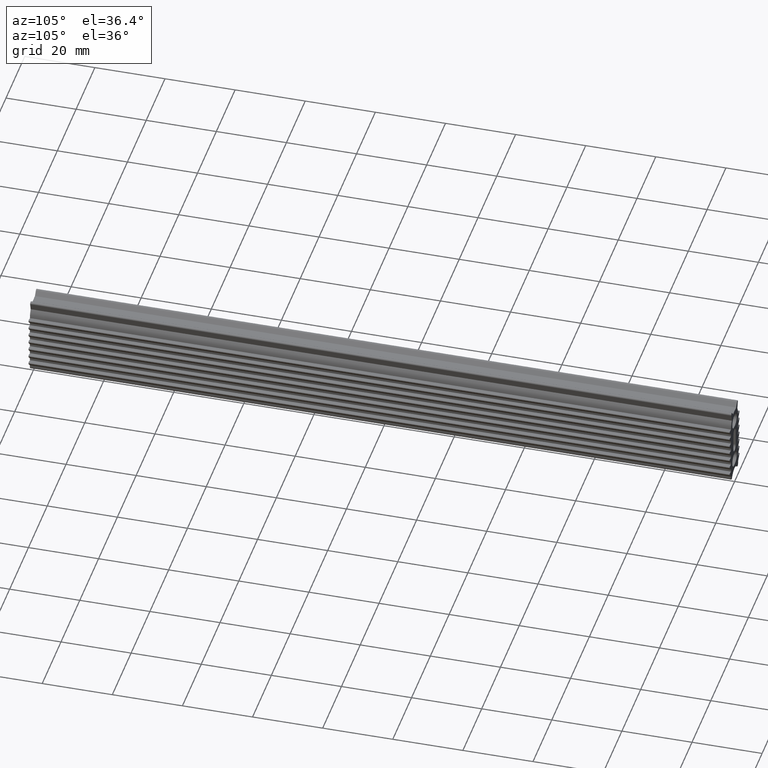
[diagram: clean part render]
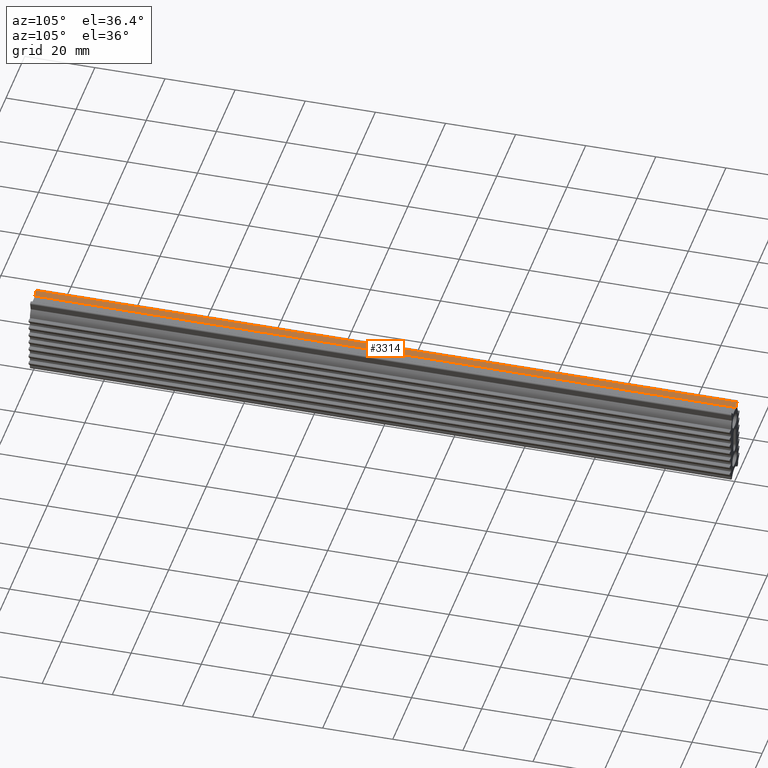
[diagram: same view with one face highlighted and labeled with its STEP entity id]
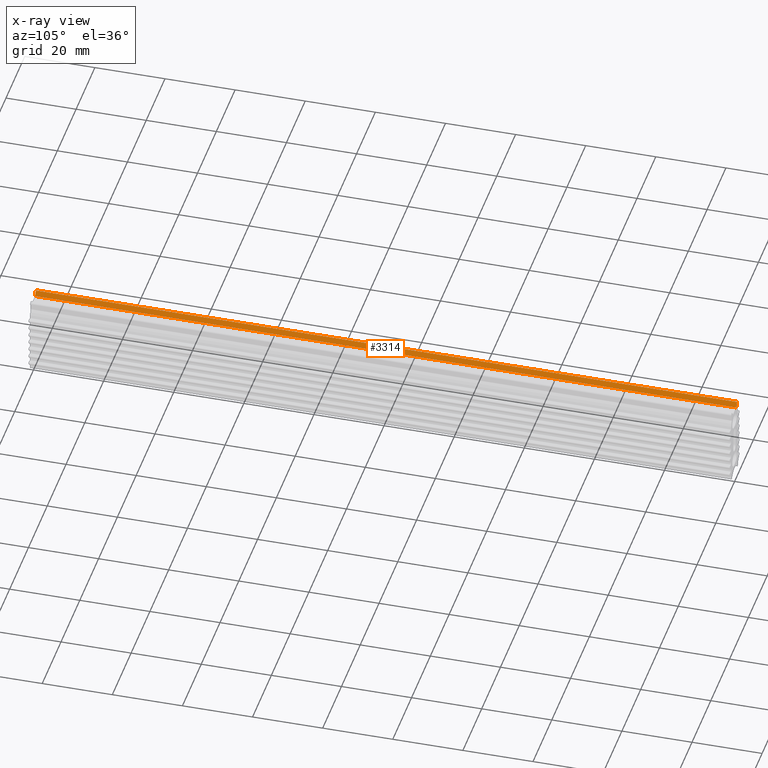
[diagram: x-ray of the same camera — body ghosted, the highlighted face saturated]
A machine part, auxiliary view. The second image highlights one B-rep face of the part: STEP entity #3314.
The next image is the same camera in x-ray: the body ghosted, the highlighted face saturated — about 0% of this face is hidden behind the body in this view.
In plain terms, the highlighted face is a freeform B-spline surface patch.
Its self-contained STEP definition (entity closure, byte-faithful):
#58=CARTESIAN_POINT('',(-1.649999999999950,0.0,0.0));
#59=VERTEX_POINT('',#58);
#65=CARTESIAN_POINT('',(-2.607942751445510,0.0,1.210308095053960));
#66=VERTEX_POINT('',#65);
#67=CARTESIAN_POINT('',(-1.649999999999950,0.0,0.0));
#68=CARTESIAN_POINT('',(-2.607942751445510,0.0,1.210308095053960));
#69=QUASI_UNIFORM_CURVE('',1,(#67,#68),.UNSPECIFIED.,.F.,.U.);
#70=EDGE_CURVE('',#59,#66,#69,.T.);
#1542=CARTESIAN_POINT('',(-2.607942751445510,200.0,1.210308095053960));
#1543=VERTEX_POINT('',#1542);
#1559=CARTESIAN_POINT('',(-1.649999999999950,200.0,0.0));
#1560=VERTEX_POINT('',#1559);
#1561=CARTESIAN_POINT('',(-1.649999999999950,200.0,0.0));
#1562=CARTESIAN_POINT('',(-2.607942751445510,200.0,1.210308095053960));
#1563=QUASI_UNIFORM_CURVE('',1,(#1561,#1562),.UNSPECIFIED.,.F.,.U.);
#1564=EDGE_CURVE('',#1560,#1543,#1563,.T.);
#3289=CARTESIAN_POINT('',(-2.607942751445510,200.0,1.210308095053960));
#3290=CARTESIAN_POINT('',(-2.607942751445510,0.0,1.210308095053960));
#3291=QUASI_UNIFORM_CURVE('',1,(#3289,#3290),.UNSPECIFIED.,.F.,.U.);
#3292=EDGE_CURVE('',#1543,#66,#3291,.T.);
#3299=CARTESIAN_POINT('',(-2.655792008008503,-9.989999612361183,1.270763004779103));
#3300=CARTESIAN_POINT('',(-1.602150734872227,-9.989999612361183,-0.060454920546098));
#3301=CARTESIAN_POINT('',(-2.655792008008503,209.990004976779200,1.270763004779103));
#3302=CARTESIAN_POINT('',(-1.602150734872227,209.990004976779200,-0.060454920546098));
#3303=B_SPLINE_SURFACE_WITH_KNOTS('',1,1,((#3299,#3301),(#3300,#3302)),.UNSPECIFIED.,.F.,.F.,.U.,(2,2),(2,2),(0.041708319303021,0.958291688147560),(0.0,219.980004589140410),.UNSPECIFIED.);
#3304=ORIENTED_EDGE('',*,*,#70,.F.);
#3305=CARTESIAN_POINT('',(-1.649999999999950,200.0,0.0));
#3306=CARTESIAN_POINT('',(-1.649999999999950,0.0,0.0));
#3307=QUASI_UNIFORM_CURVE('',1,(#3305,#3306),.UNSPECIFIED.,.F.,.U.);
#3308=EDGE_CURVE('',#1560,#59,#3307,.T.);
#3309=ORIENTED_EDGE('',*,*,#3308,.F.);
#3310=ORIENTED_EDGE('',*,*,#1564,.T.);
#3311=ORIENTED_EDGE('',*,*,#3292,.T.);
#3312=EDGE_LOOP('',(#3304,#3309,#3310,#3311));
#3313=FACE_OUTER_BOUND('',#3312,.T.);
#3314=ADVANCED_FACE('',(#3313),#3303,.T.);